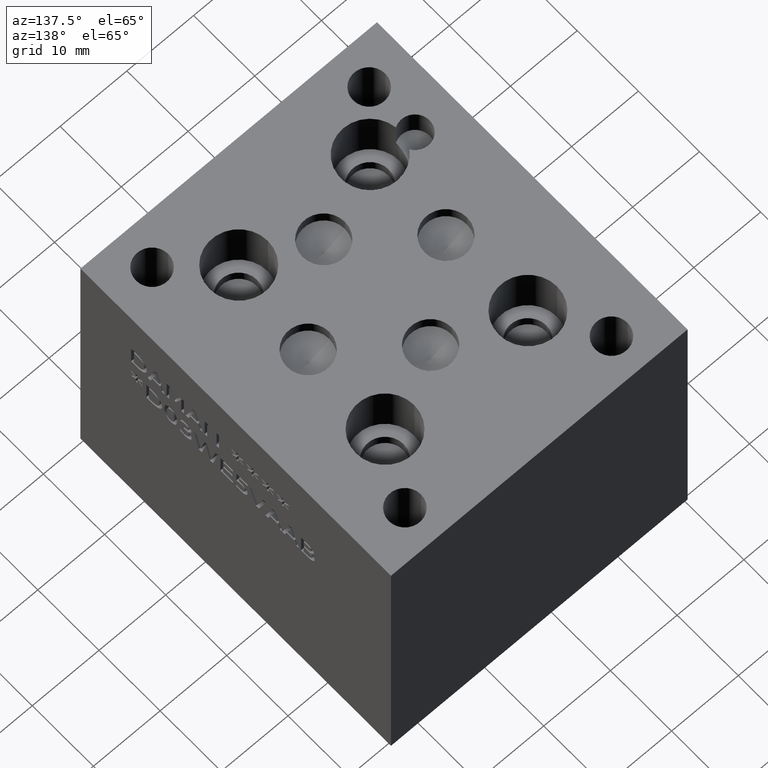
[diagram: clean part render]
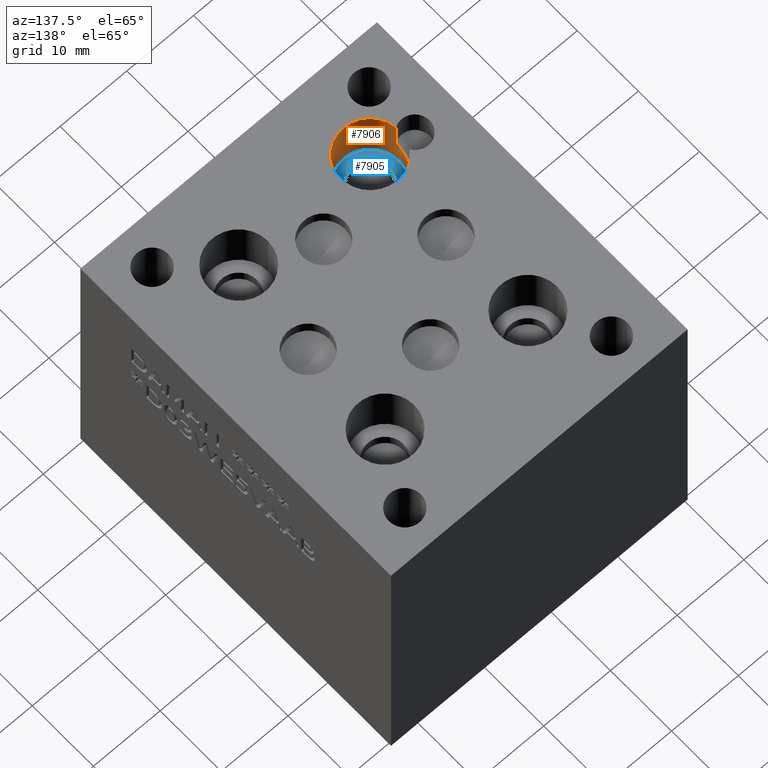
[diagram: same view with the hole feature highlighted: cylindrical wall and planar end face, labeled with their STEP entity ids]
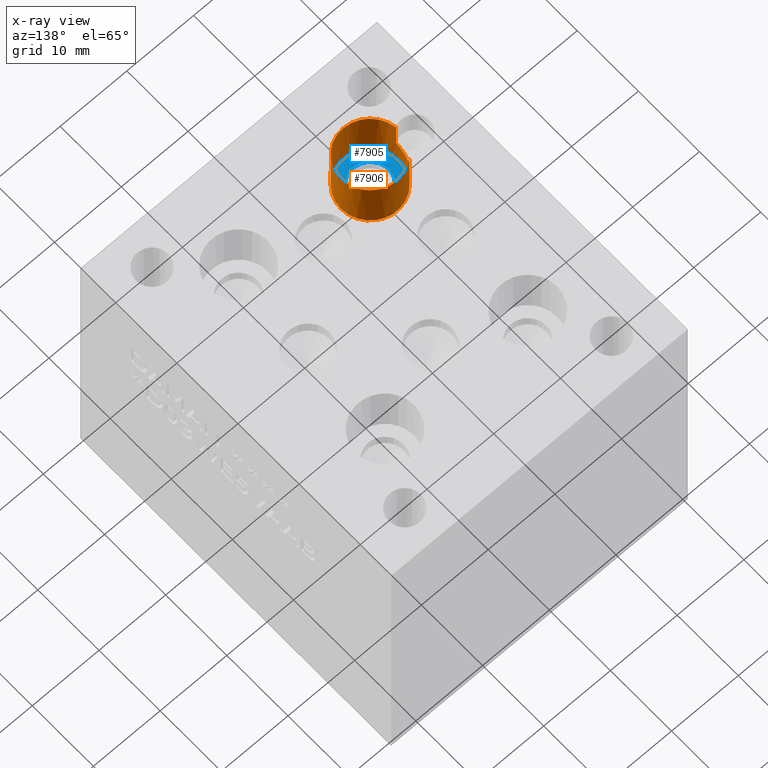
[diagram: x-ray of the same camera — body ghosted, the hole faces saturated]
A machine part, auxiliary view. The highlighted faces form one hole feature of diameter 8.7376 mm: the cylindrical wall (entity #7906, orange) and its adjacent planar end face (entity #7905, blue) — they share a circular edge in the B-rep.
The next image is the same camera in x-ray (body ghosted, the hole faces saturated) — the bore reads through the body.
Wall:
#88=CIRCLE('',#8298,4.3688);
#89=CIRCLE('',#8299,4.3688);
#91=CIRCLE('',#8302,4.3688);
#167=CYLINDRICAL_SURFACE('',#8301,4.3688);
#394=B_SPLINE_CURVE_WITH_KNOTS('',3,(#13083,#13084,#13085,#13086,#13087,
#13088,#13089,#13090,#13091,#13092,#13093,#13094),.UNSPECIFIED.,.F.,.F.,
(4,2,2,2,2,4),(0.214539488504349,0.244006307263613,0.325341743018151,0.406677178772688,
0.488012614527226,0.491880798742274),.UNSPECIFIED.);
#395=B_SPLINE_CURVE_WITH_KNOTS('',3,(#13097,#13098,#13099,#13100,#13101,
#13102),.UNSPECIFIED.,.F.,.F.,(4,2,4),(0.158802687294027,0.162670871509075,
0.214539488504349),.UNSPECIFIED.);
#827=FACE_OUTER_BOUND('',#1260,.T.);
#1260=EDGE_LOOP('',(#6723,#6724,#6725,#6726,#6727,#6728,#6729,#6730,#6731));
#2105=LINE('',#13081,#2921);
#2106=LINE('',#13095,#2922);
#2107=LINE('',#13104,#2923);
#2921=VECTOR('',#9864,10.);
#2922=VECTOR('',#9865,4.3688);
#2923=VECTOR('',#9866,10.);
#3625=VERTEX_POINT('',#13072);
#3626=VERTEX_POINT('',#13073);
#3628=VERTEX_POINT('',#13079);
#3629=VERTEX_POINT('',#13080);
#3630=VERTEX_POINT('',#13082);
#3631=VERTEX_POINT('',#13096);
#3632=VERTEX_POINT('',#13103);
#4685=EDGE_CURVE('',#3625,#3626,#88,.T.);
#4686=EDGE_CURVE('',#3626,#3625,#89,.T.);
#4688=EDGE_CURVE('',#3628,#3629,#2105,.T.);
#4689=EDGE_CURVE('',#3630,#3628,#394,.T.);
#4690=EDGE_CURVE('',#3630,#3626,#2106,.T.);
#4691=EDGE_CURVE('',#3631,#3630,#395,.T.);
#4692=EDGE_CURVE('',#3632,#3631,#2107,.T.);
#4693=EDGE_CURVE('',#3629,#3632,#91,.T.);
#6723=ORIENTED_EDGE('',*,*,#4688,.F.);
#6724=ORIENTED_EDGE('',*,*,#4689,.F.);
#6725=ORIENTED_EDGE('',*,*,#4690,.T.);
#6726=ORIENTED_EDGE('',*,*,#4685,.F.);
#6727=ORIENTED_EDGE('',*,*,#4686,.F.);
#6728=ORIENTED_EDGE('',*,*,#4690,.F.);
#6729=ORIENTED_EDGE('',*,*,#4691,.F.);
#6730=ORIENTED_EDGE('',*,*,#4692,.F.);
#6731=ORIENTED_EDGE('',*,*,#4693,.F.);
#7906=ADVANCED_FACE('',(#827),#167,.F.);
#8298=AXIS2_PLACEMENT_3D('',#13074,#9856,#9857);
#8299=AXIS2_PLACEMENT_3D('',#13075,#9858,#9859);
#8301=AXIS2_PLACEMENT_3D('',#13078,#9862,#9863);
#8302=AXIS2_PLACEMENT_3D('',#13105,#9867,#9868);
#9856=DIRECTION('center_axis',(0.,0.,1.));
#9857=DIRECTION('ref_axis',(1.,0.,0.));
#9858=DIRECTION('center_axis',(0.,0.,1.));
#9859=DIRECTION('ref_axis',(1.,0.,0.));
#9862=DIRECTION('center_axis',(0.,0.,1.));
#9863=DIRECTION('ref_axis',(1.,0.,0.));
#9864=DIRECTION('',(0.,0.,1.));
#9865=DIRECTION('',(0.,0.,-1.));
#9866=DIRECTION('',(0.,0.,-1.));
#9867=DIRECTION('center_axis',(0.,0.,-1.));
#9868=DIRECTION('ref_axis',(1.,0.,0.));
#13072=CARTESIAN_POINT('',(15.8242,11.3792,36.5252));
#13073=CARTESIAN_POINT('',(7.0866,11.3792,36.5252));
#13074=CARTESIAN_POINT('Origin',(11.4554,11.3792,36.5252));
#13075=CARTESIAN_POINT('Origin',(11.4554,11.3792,36.5252));
#13078=CARTESIAN_POINT('Origin',(11.4554,11.3792,40.4876));
#13079=CARTESIAN_POINT('',(7.84667365849293,13.8416190610278,40.41553));
#13080=CARTESIAN_POINT('',(7.84667365849293,13.8416190610278,44.45));
#13081=CARTESIAN_POINT('',(7.84667365849293,13.8416190610278,40.4876));
#13082=CARTESIAN_POINT('',(7.0866,11.3792000000461,40.1645284681264));
#13083=CARTESIAN_POINT('Ctrl Pts',(7.0866,11.3792000000923,40.1645284681264));
#13084=CARTESIAN_POINT('Ctrl Pts',(7.08660000000191,11.4698268809519,40.1242702853932));
#13085=CARTESIAN_POINT('Ctrl Pts',(7.08941381605807,11.5606184681347,40.0865964644194));
#13086=CARTESIAN_POINT('Ctrl Pts',(7.1108288262794,11.9032380363043,39.9590445487055));
#13087=CARTESIAN_POINT('Ctrl Pts',(7.14785196085077,12.1569842663427,39.8935736110225));
#13088=CARTESIAN_POINT('Ctrl Pts',(7.27706769564825,12.6835993364608,39.8935736110225));
#13089=CARTESIAN_POINT('Ctrl Pts',(7.36170168536642,12.9256632733382,39.9590445487055));
#13090=CARTESIAN_POINT('Ctrl Pts',(7.56666055612705,13.3860930543568,40.1463059125007));
#13091=CARTESIAN_POINT('Ctrl Pts',(7.68758055638868,13.6045920649636,40.2671157726354));
#13092=CARTESIAN_POINT('Ctrl Pts',(7.8333218703074,13.8219657191682,40.4031156041189));
#13093=CARTESIAN_POINT('Ctrl Pts',(7.83997808298378,13.8318065558804,40.4093121958163));
#13094=CARTESIAN_POINT('Ctrl Pts',(7.84667365849293,13.8416190610278,40.41553));
#13095=CARTESIAN_POINT('',(7.0866,11.3792,40.4876));
#13096=CARTESIAN_POINT('',(7.11674902016875,10.8668318557821,40.41553));
#13097=CARTESIAN_POINT('Ctrl Pts',(7.11674902016875,10.8668318557821,40.41553));
#13098=CARTESIAN_POINT('Ctrl Pts',(7.11535583748413,10.8786291025233,40.4093121958163));
#13099=CARTESIAN_POINT('Ctrl Pts',(7.11401066089748,10.8904332430825,40.4031156041189));
#13100=CARTESIAN_POINT('Ctrl Pts',(7.09531975996817,11.0606097436897,40.3141499524865));
#13101=CARTESIAN_POINT('Ctrl Pts',(7.08659999999663,11.2196751117361,40.2353924551138));
#13102=CARTESIAN_POINT('Ctrl Pts',(7.0866,11.3792000000923,40.1645284681264));
#13103=CARTESIAN_POINT('',(7.11674902016875,10.8668318557821,44.45));
#13104=CARTESIAN_POINT('',(7.11674902016875,10.8668318557821,40.4876));
#13105=CARTESIAN_POINT('Origin',(11.4554,11.3792,44.45));
End face:
#88=CIRCLE('',#8298,4.3688);
#89=CIRCLE('',#8299,4.3688);
#90=CIRCLE('',#8300,2.7813);
#219=FACE_BOUND('',#1259,.T.);
#826=FACE_OUTER_BOUND('',#1258,.T.);
#1258=EDGE_LOOP('',(#6720,#6721));
#1259=EDGE_LOOP('',(#6722));
#3625=VERTEX_POINT('',#13072);
#3626=VERTEX_POINT('',#13073);
#3627=VERTEX_POINT('',#13076);
#4685=EDGE_CURVE('',#3625,#3626,#88,.T.);
#4686=EDGE_CURVE('',#3626,#3625,#89,.T.);
#4687=EDGE_CURVE('',#3627,#3627,#90,.T.);
#6720=ORIENTED_EDGE('',*,*,#4685,.T.);
#6721=ORIENTED_EDGE('',*,*,#4686,.T.);
#6722=ORIENTED_EDGE('',*,*,#4687,.F.);
#7217=PLANE('',#8297);
#7905=ADVANCED_FACE('',(#826,#219),#7217,.T.);
#8297=AXIS2_PLACEMENT_3D('',#13071,#9854,#9855);
#8298=AXIS2_PLACEMENT_3D('',#13074,#9856,#9857);
#8299=AXIS2_PLACEMENT_3D('',#13075,#9858,#9859);
#8300=AXIS2_PLACEMENT_3D('',#13077,#9860,#9861);
#9854=DIRECTION('center_axis',(0.,0.,1.));
#9855=DIRECTION('ref_axis',(1.,0.,0.));
#9856=DIRECTION('center_axis',(0.,0.,1.));
#9857=DIRECTION('ref_axis',(1.,0.,0.));
#9858=DIRECTION('center_axis',(0.,0.,1.));
#9859=DIRECTION('ref_axis',(1.,0.,0.));
#9860=DIRECTION('center_axis',(0.,0.,1.));
#9861=DIRECTION('ref_axis',(1.,0.,0.));
#13071=CARTESIAN_POINT('Origin',(11.4554,11.3792,36.5252));
#13072=CARTESIAN_POINT('',(15.8242,11.3792,36.5252));
#13073=CARTESIAN_POINT('',(7.0866,11.3792,36.5252));
#13074=CARTESIAN_POINT('Origin',(11.4554,11.3792,36.5252));
#13075=CARTESIAN_POINT('Origin',(11.4554,11.3792,36.5252));
#13076=CARTESIAN_POINT('',(8.6741,11.3792,36.5252));
#13077=CARTESIAN_POINT('Origin',(11.4554,11.3792,36.5252));